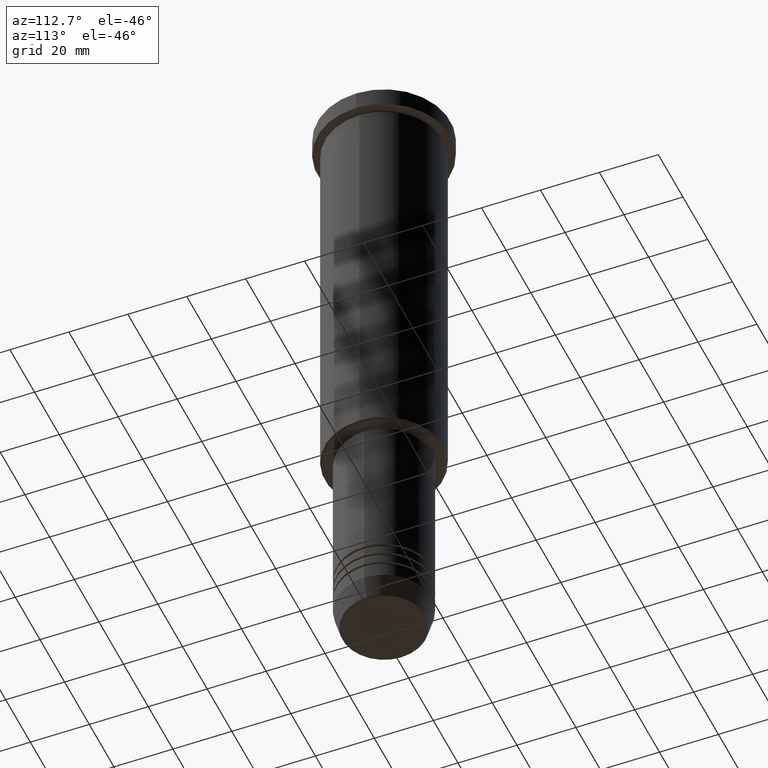
[diagram: clean part render]
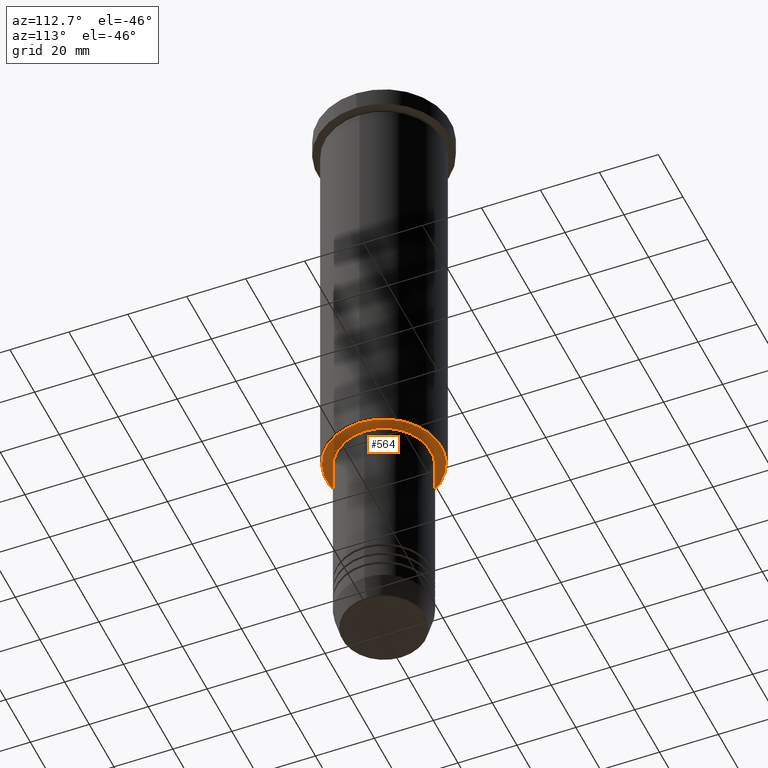
[diagram: same view with one face highlighted and labeled with its STEP entity id]
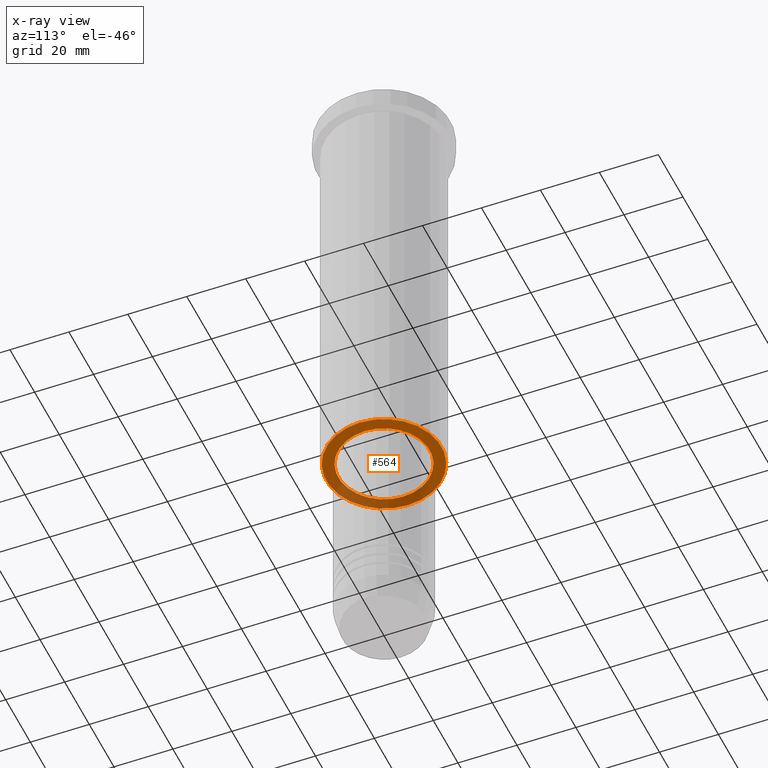
[diagram: x-ray of the same camera — body ghosted, the highlighted face saturated]
A machine part, auxiliary view. The second image highlights one B-rep face of the part: STEP entity #564.
The next image is the same camera in x-ray: the body ghosted, the highlighted face saturated — about 30% of this face is hidden behind the body in this view.
In plain terms, the highlighted planar face has unit normal (0, 0, -1).
Its self-contained STEP definition (entity closure, byte-faithful):
#47 = CARTESIAN_POINT ( 'NONE',  ( 0.000000000000000000, 0.000000000000000000, -146.0000000000000000 ) ) ;
#102 = VERTEX_POINT ( 'NONE', #1133 ) ;
#127 = FACE_OUTER_BOUND ( 'NONE', #1062, .T. ) ;
#168 = VERTEX_POINT ( 'NONE', #1150 ) ;
#170 = CARTESIAN_POINT ( 'NONE',  ( 0.000000000000000000, 0.000000000000000000, -146.0000000000000000 ) ) ;
#290 = ORIENTED_EDGE ( 'NONE', *, *, #1032, .T. ) ;
#348 = CIRCLE ( 'NONE', #1048, 19.50000000000001776 ) ;
#456 = DIRECTION ( 'NONE',  ( 0.000000000000000000, 0.000000000000000000, -1.000000000000000000 ) ) ;
#505 = DIRECTION ( 'NONE',  ( -1.000000000000000000, 0.000000000000000000, 0.000000000000000000 ) ) ;
#516 = DIRECTION ( 'NONE',  ( -0.000000000000000000, -0.000000000000000000, 1.000000000000000000 ) ) ;
#521 = DIRECTION ( 'NONE',  ( 0.000000000000000000, 0.000000000000000000, -1.000000000000000000 ) ) ;
#522 = FACE_BOUND ( 'NONE', #983, .T. ) ;
#564 = ADVANCED_FACE ( 'NONE', ( #127, #522 ), #867, .T. ) ;
#577 = AXIS2_PLACEMENT_3D ( 'NONE', #47, #516, #1027 ) ;
#607 = DIRECTION ( 'NONE',  ( -1.000000000000000000, 0.000000000000000000, -0.000000000000000000 ) ) ;
#611 = AXIS2_PLACEMENT_3D ( 'NONE', #1135, #785, #607 ) ;
#614 = CARTESIAN_POINT ( 'NONE',  ( 0.000000000000000000, 0.000000000000000000, -146.0000000000000000 ) ) ;
#702 = CARTESIAN_POINT ( 'NONE',  ( -19.50000000000001776, 2.418677428316023909E-15, -146.0000000000000000 ) ) ;
#705 = CIRCLE ( 'NONE', #577, 15.50000000000000000 ) ;
#715 = EDGE_CURVE ( 'NONE', #168, #102, #890, .T. ) ;
#718 = ORIENTED_EDGE ( 'NONE', *, *, #955, .T. ) ;
#775 = EDGE_CURVE ( 'NONE', #868, #1070, #910, .T. ) ;
#782 = AXIS2_PLACEMENT_3D ( 'NONE', #981, #1172, #894 ) ;
#785 = DIRECTION ( 'NONE',  ( 0.000000000000000000, 0.000000000000000000, -1.000000000000000000 ) ) ;
#804 = DIRECTION ( 'NONE',  ( -1.000000000000000000, 0.000000000000000000, 0.000000000000000000 ) ) ;
#859 = AXIS2_PLACEMENT_3D ( 'NONE', #170, #456, #804 ) ;
#867 = PLANE ( 'NONE',  #611 ) ;
#868 = VERTEX_POINT ( 'NONE', #905 ) ;
#890 = CIRCLE ( 'NONE', #782, 15.50000000000000000 ) ;
#894 = DIRECTION ( 'NONE',  ( 1.000000000000000000, 0.000000000000000000, 0.000000000000000000 ) ) ;
#905 = CARTESIAN_POINT ( 'NONE',  ( 19.50000000000001776, 0.000000000000000000, -146.0000000000000000 ) ) ;
#910 = CIRCLE ( 'NONE', #859, 19.50000000000001776 ) ;
#955 = EDGE_CURVE ( 'NONE', #102, #168, #705, .T. ) ;
#976 = ORIENTED_EDGE ( 'NONE', *, *, #715, .T. ) ;
#981 = CARTESIAN_POINT ( 'NONE',  ( 0.000000000000000000, 0.000000000000000000, -146.0000000000000000 ) ) ;
#983 = EDGE_LOOP ( 'NONE', ( #718, #976 ) ) ;
#1027 = DIRECTION ( 'NONE',  ( 1.000000000000000000, 0.000000000000000000, 0.000000000000000000 ) ) ;
#1032 = EDGE_CURVE ( 'NONE', #1070, #868, #348, .T. ) ;
#1048 = AXIS2_PLACEMENT_3D ( 'NONE', #614, #521, #505 ) ;
#1062 = EDGE_LOOP ( 'NONE', ( #1170, #290 ) ) ;
#1070 = VERTEX_POINT ( 'NONE', #702 ) ;
#1133 = CARTESIAN_POINT ( 'NONE',  ( 15.50000000000000000, 0.000000000000000000, -146.0000000000000000 ) ) ;
#1135 = CARTESIAN_POINT ( 'NONE',  ( 0.000000000000000000, 20.00000000000000355, -146.0000000000000000 ) ) ;
#1150 = CARTESIAN_POINT ( 'NONE',  ( -15.50000000000000000, 1.898202538678397557E-15, -146.0000000000000000 ) ) ;
#1170 = ORIENTED_EDGE ( 'NONE', *, *, #775, .T. ) ;
#1172 = DIRECTION ( 'NONE',  ( -0.000000000000000000, -0.000000000000000000, 1.000000000000000000 ) ) ;